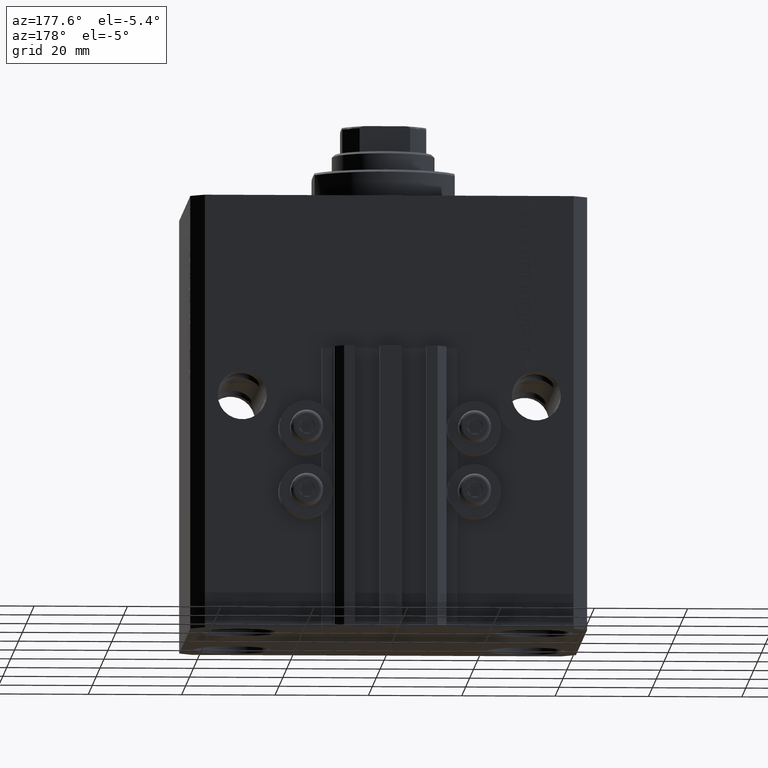
[diagram: clean part render]
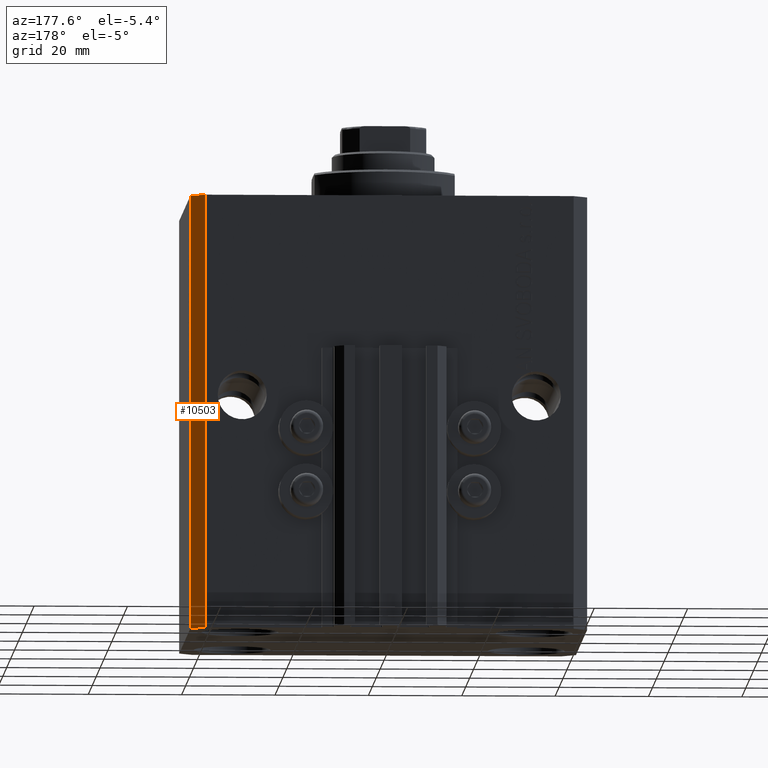
[diagram: same view with one face highlighted and labeled with its STEP entity id]
A machine part, auxiliary view. The second image highlights one B-rep face of the part: STEP entity #10503.
In plain terms, the highlighted planar face has unit normal (0.7071, 0.7071, 0).
Its self-contained STEP definition (entity closure, byte-faithful):
#115 = FACE_OUTER_BOUND ( 'NONE', #11247, .T. ) ;
#2774 = DIRECTION ( 'NONE',  ( -0.7071067811865356934, 0.7071067811865594521, 0.000000000000000000 ) ) ;
#4290 = ORIENTED_EDGE ( 'NONE', *, *, #14713, .F. ) ;
#8186 = VECTOR ( 'NONE', #2774, 1000.000000000000114 ) ;
#8620 = CARTESIAN_POINT ( 'NONE',  ( 42.50000000000051870, 28.49999999999995381, 0.000000000000000000 ) ) ;
#10503 = ADVANCED_FACE ( 'NONE', ( #115 ), #29232, .T. ) ;
#10814 = LINE ( 'NONE', #43758, #46971 ) ;
#11041 = CARTESIAN_POINT ( 'NONE',  ( 42.50000000000051870, 28.49999999999995381, -93.00000000000000000 ) ) ;
#11247 = EDGE_LOOP ( 'NONE', ( #4290, #19457, #40211, #42828 ) ) ;
#12044 = VERTEX_POINT ( 'NONE', #18642 ) ;
#13813 = AXIS2_PLACEMENT_3D ( 'NONE', #21995, #25149, #21540 ) ;
#14047 = EDGE_CURVE ( 'NONE', #35578, #24539, #32942, .T. ) ;
#14713 = EDGE_CURVE ( 'NONE', #24539, #12044, #10814, .T. ) ;
#16314 = LINE ( 'NONE', #46608, #31181 ) ;
#16945 = VECTOR ( 'NONE', #43513, 1000.000000000000000 ) ;
#18642 = CARTESIAN_POINT ( 'NONE',  ( 39.50000000000056843, 31.50000000000000000, 0.000000000000000000 ) ) ;
#19457 = ORIENTED_EDGE ( 'NONE', *, *, #14047, .F. ) ;
#21540 = DIRECTION ( 'NONE',  ( -0.7071067811865355823, 0.7071067811865594521, 0.000000000000000000 ) ) ;
#21995 = CARTESIAN_POINT ( 'NONE',  ( 42.50000000000051870, 28.49999999999995381, -93.00000000000000000 ) ) ;
#22103 = EDGE_CURVE ( 'NONE', #26795, #12044, #16314, .T. ) ;
#23568 = CARTESIAN_POINT ( 'NONE',  ( 39.50000000000056843, 31.50000000000000000, -93.00000000000000000 ) ) ;
#24539 = VERTEX_POINT ( 'NONE', #8620 ) ;
#24666 = EDGE_CURVE ( 'NONE', #35578, #26795, #36440, .T. ) ;
#25149 = DIRECTION ( 'NONE',  ( 0.7071067811865594521, 0.7071067811865355823, -0.000000000000000000 ) ) ;
#25718 = DIRECTION ( 'NONE',  ( -0.7071067811865356934, 0.7071067811865594521, 0.000000000000000000 ) ) ;
#26795 = VERTEX_POINT ( 'NONE', #23568 ) ;
#29232 = PLANE ( 'NONE',  #13813 ) ;
#31181 = VECTOR ( 'NONE', #31236, 1000.000000000000000 ) ;
#31236 = DIRECTION ( 'NONE',  ( 0.000000000000000000, 0.000000000000000000, 1.000000000000000000 ) ) ;
#32942 = LINE ( 'NONE', #11041, #16945 ) ;
#35578 = VERTEX_POINT ( 'NONE', #37200 ) ;
#36440 = LINE ( 'NONE', #40267, #8186 ) ;
#37200 = CARTESIAN_POINT ( 'NONE',  ( 42.50000000000051870, 28.49999999999995381, -93.00000000000000000 ) ) ;
#40211 = ORIENTED_EDGE ( 'NONE', *, *, #24666, .T. ) ;
#40267 = CARTESIAN_POINT ( 'NONE',  ( 42.50000000000051870, 28.49999999999995381, -93.00000000000000000 ) ) ;
#42828 = ORIENTED_EDGE ( 'NONE', *, *, #22103, .T. ) ;
#43513 = DIRECTION ( 'NONE',  ( 0.000000000000000000, 0.000000000000000000, 1.000000000000000000 ) ) ;
#43758 = CARTESIAN_POINT ( 'NONE',  ( 42.50000000000051870, 28.49999999999995381, 0.000000000000000000 ) ) ;
#46608 = CARTESIAN_POINT ( 'NONE',  ( 39.50000000000056843, 31.50000000000000000, -93.00000000000000000 ) ) ;
#46971 = VECTOR ( 'NONE', #25718, 1000.000000000000114 ) ;